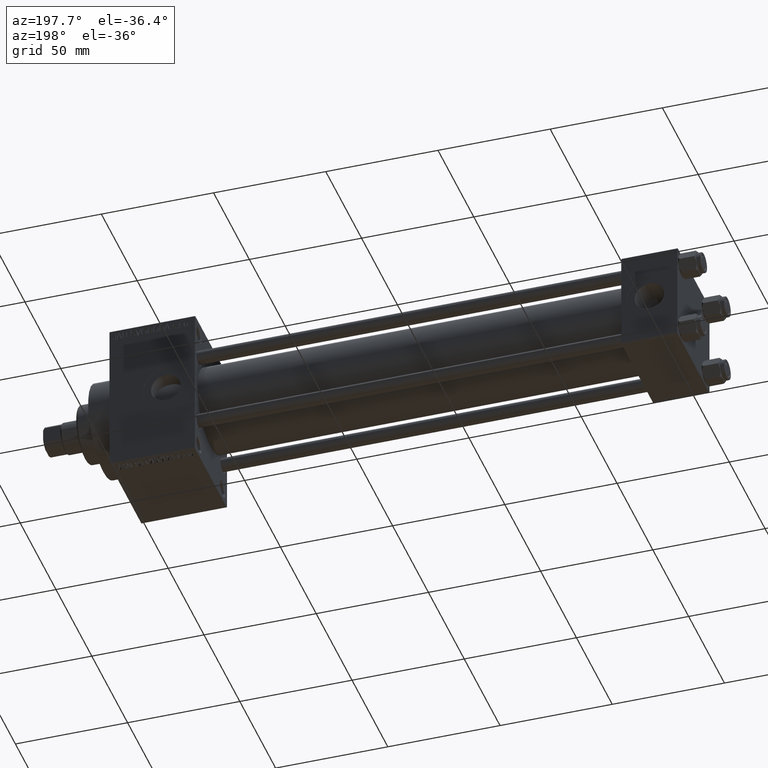
[diagram: clean part render]
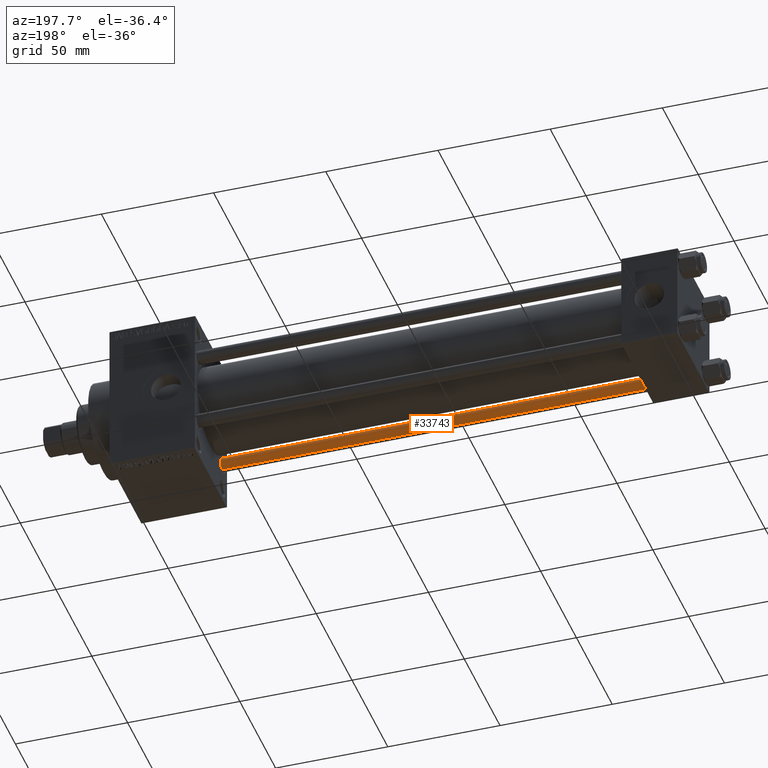
[diagram: same view with one face highlighted and labeled with its STEP entity id]
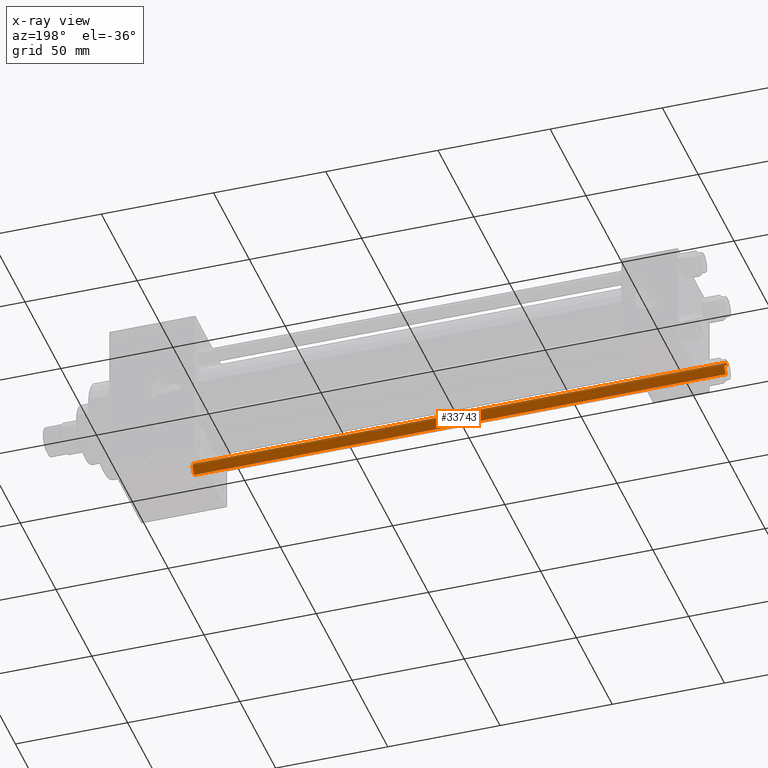
[diagram: x-ray of the same camera — body ghosted, the highlighted face saturated]
A machine part, auxiliary view. The second image highlights one B-rep face of the part: STEP entity #33743.
The next image is the same camera in x-ray: the body ghosted, the highlighted face saturated — about 0% of this face is hidden behind the body in this view.
In plain terms, the highlighted cylindrical surface (edge-blend (fillet) strip) has radius 3 mm, axis along (-1, 0, 0).
Its self-contained STEP definition (entity closure, byte-faithful):
#888 = ORIENTED_EDGE ( 'NONE', *, *, #5384, .T. ) ;
#1261 = DIRECTION ( 'NONE',  ( -0.000000000000000000, -0.000000000000000000, -1.000000000000000000 ) ) ;
#1416 = CIRCLE ( 'NONE', #41997, 3.000000000000000444 ) ;
#4520 = DIRECTION ( 'NONE',  ( -0.000000000000000000, -0.000000000000000000, -1.000000000000000000 ) ) ;
#4956 = LINE ( 'NONE', #8696, #8979 ) ;
#5384 = EDGE_CURVE ( 'NONE', #47302, #37061, #1416, .T. ) ;
#5953 = CARTESIAN_POINT ( 'NONE',  ( 0.000000000000000000, 0.000000000000000000, 237.5000000000000284 ) ) ;
#8696 = CARTESIAN_POINT ( 'NONE',  ( -3.000000000000000444, 0.000000000000000000, 238.0000000000000000 ) ) ;
#8979 = VECTOR ( 'NONE', #15443, 1000.000000000000000 ) ;
#11211 = VERTEX_POINT ( 'NONE', #31027 ) ;
#12751 = DIRECTION ( 'NONE',  ( 1.000000000000000000, 0.000000000000000000, 0.000000000000000000 ) ) ;
#15443 = DIRECTION ( 'NONE',  ( -0.000000000000000000, -0.000000000000000000, -1.000000000000000000 ) ) ;
#15747 = LINE ( 'NONE', #34707, #24921 ) ;
#17111 = ORIENTED_EDGE ( 'NONE', *, *, #31738, .F. ) ;
#17593 = AXIS2_PLACEMENT_3D ( 'NONE', #42924, #31719, #12751 ) ;
#20216 = CYLINDRICAL_SURFACE ( 'NONE', #21040, 3.000000000000000444 ) ;
#20467 = CARTESIAN_POINT ( 'NONE',  ( 3.000000000000000444, 3.673940397442060361E-16, 0.5000000000000281997 ) ) ;
#21040 = AXIS2_PLACEMENT_3D ( 'NONE', #35426, #1261, #35668 ) ;
#23267 = EDGE_CURVE ( 'NONE', #11211, #42411, #29545, .T. ) ;
#24921 = VECTOR ( 'NONE', #4520, 1000.000000000000000 ) ;
#27571 = EDGE_CURVE ( 'NONE', #37061, #11211, #4956, .T. ) ;
#28023 = CARTESIAN_POINT ( 'NONE',  ( -3.000000000000000444, 0.000000000000000000, 237.5000000000000284 ) ) ;
#29545 = CIRCLE ( 'NONE', #17593, 3.000000000000000444 ) ;
#29737 = ORIENTED_EDGE ( 'NONE', *, *, #27571, .T. ) ;
#31027 = CARTESIAN_POINT ( 'NONE',  ( -3.000000000000000444, 0.000000000000000000, 0.5000000000000281997 ) ) ;
#31719 = DIRECTION ( 'NONE',  ( -0.000000000000000000, -0.000000000000000000, 1.000000000000000000 ) ) ;
#31738 = EDGE_CURVE ( 'NONE', #47302, #42411, #15747, .T. ) ;
#33676 = EDGE_LOOP ( 'NONE', ( #17111, #888, #29737, #37636 ) ) ;
#33743 = ADVANCED_FACE ( 'NONE', ( #39159 ), #20216, .T. ) ;
#34707 = CARTESIAN_POINT ( 'NONE',  ( 3.000000000000000444, 3.673940397442060361E-16, 238.0000000000000000 ) ) ;
#35426 = CARTESIAN_POINT ( 'NONE',  ( 0.000000000000000000, 0.000000000000000000, 238.0000000000000000 ) ) ;
#35668 = DIRECTION ( 'NONE',  ( -1.000000000000000000, 0.000000000000000000, 0.000000000000000000 ) ) ;
#36383 = DIRECTION ( 'NONE',  ( 1.000000000000000000, 0.000000000000000000, 0.000000000000000000 ) ) ;
#37061 = VERTEX_POINT ( 'NONE', #28023 ) ;
#37636 = ORIENTED_EDGE ( 'NONE', *, *, #23267, .T. ) ;
#39159 = FACE_OUTER_BOUND ( 'NONE', #33676, .T. ) ;
#40607 = DIRECTION ( 'NONE',  ( 0.000000000000000000, 0.000000000000000000, -1.000000000000000000 ) ) ;
#41997 = AXIS2_PLACEMENT_3D ( 'NONE', #5953, #40607, #36383 ) ;
#42411 = VERTEX_POINT ( 'NONE', #20467 ) ;
#42924 = CARTESIAN_POINT ( 'NONE',  ( 0.000000000000000000, 0.000000000000000000, 0.5000000000000281997 ) ) ;
#47302 = VERTEX_POINT ( 'NONE', #48507 ) ;
#48507 = CARTESIAN_POINT ( 'NONE',  ( 3.000000000000000444, 3.673940397442060361E-16, 237.5000000000000284 ) ) ;